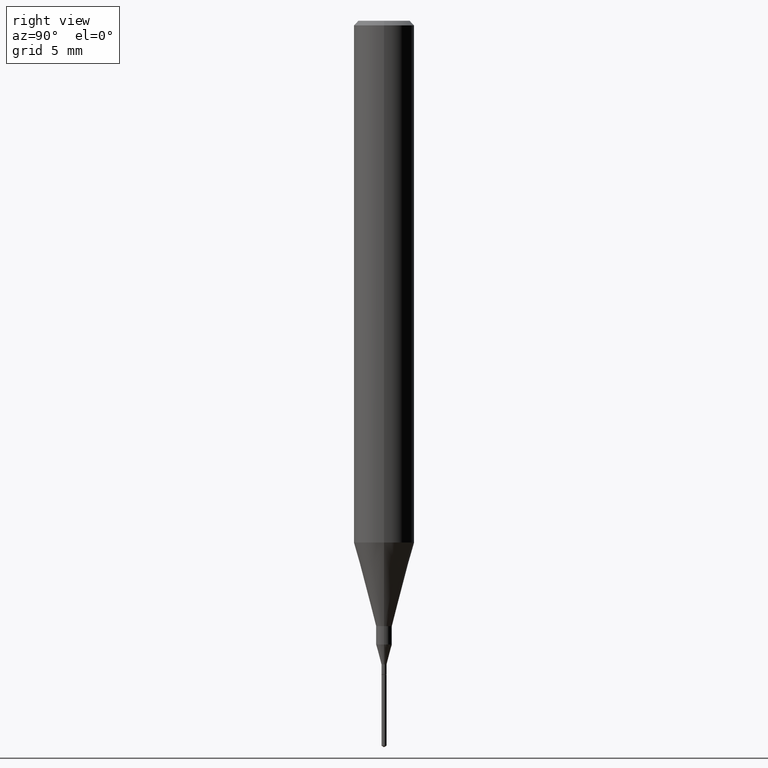
[diagram: clean part render]
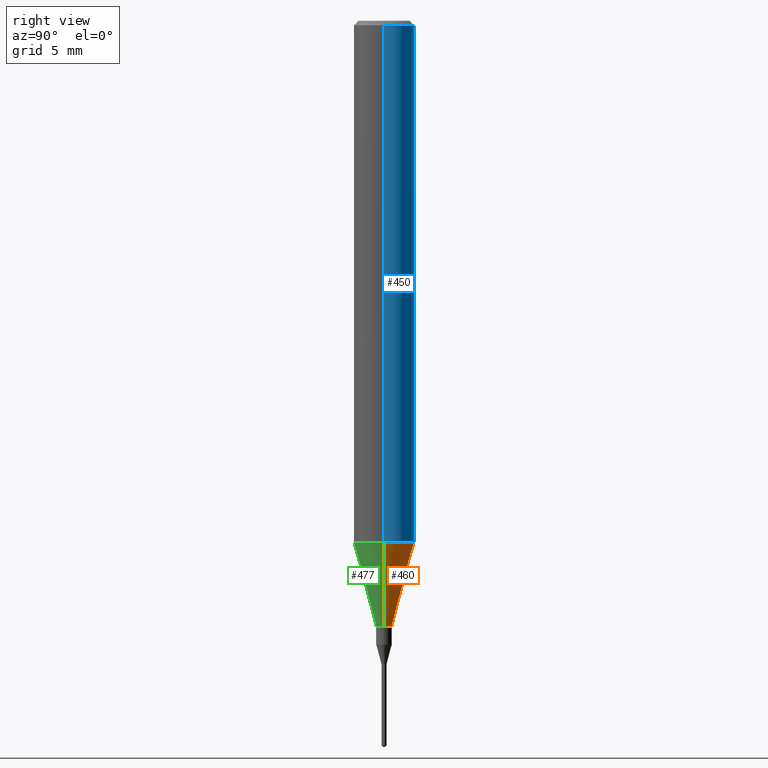
[diagram: same view with three faces highlighted in distinct colors, each labeled with its STEP entity id]
A machine part, right view with three faces highlighted in distinct colors.
Their STEP definitions:

[orange] entity #460 — the highlighted conical surface has half-angle 15 deg.
#48 = VERTEX_POINT ( 'NONE', #338 ) ;
#73 = VECTOR ( 'NONE', #232, 39.37007874015747433 ) ;
#84 = EDGE_CURVE ( 'NONE', #323, #48, #434, .T. ) ;
#88 = DIRECTION ( 'NONE',  ( -2.445468806185136597E-29, 3.491481338843145583E-15, 1.000000000000000000 ) ) ;
#105 = ORIENTED_EDGE ( 'NONE', *, *, #84, .F. ) ;
#121 = CARTESIAN_POINT ( 'NONE',  ( 2.634730117954813298E-29, -3.761696332605275695E-15, -1.077392650149939346 ) ) ;
#122 = CARTESIAN_POINT ( 'NONE',  ( 2.634730117954813298E-29, -3.761696332605275695E-15, -1.077392650149939346 ) ) ;
#124 = LINE ( 'NONE', #439, #518 ) ;
#158 = DIRECTION ( 'NONE',  ( -2.445468806185136597E-29, 3.491481338843145583E-15, 1.000000000000000000 ) ) ;
#164 = CIRCLE ( 'NONE', #372, 0.01624999999999999709 ) ;
#187 = DIRECTION ( 'NONE',  ( -2.445468806185136597E-29, 3.491481338843145583E-15, 1.000000000000000000 ) ) ;
#188 = EDGE_CURVE ( 'NONE', #419, #323, #124, .T. ) ;
#203 = ORIENTED_EDGE ( 'NONE', *, *, #188, .F. ) ;
#232 = DIRECTION ( 'NONE',  ( -0.2588190451025214611, 5.211531920934551042E-15, 0.9659258262890682012 ) ) ;
#236 = EDGE_LOOP ( 'NONE', ( #503, #341, #105, #203 ) ) ;
#263 = AXIS2_PLACEMENT_3D ( 'NONE', #121, #158, #481 ) ;
#264 = DIRECTION ( 'NONE',  ( 1.000000000000000000, -6.982962677686264344E-15, 0.000000000000000000 ) ) ;
#276 = CARTESIAN_POINT ( 'NONE',  ( 0.06250000000000012490, -4.198131499960668153E-15, -1.077392650149939346 ) ) ;
#279 = CARTESIAN_POINT ( 'NONE',  ( -0.06250000000000012490, -3.317607122755211895E-15, -1.077392650149939346 ) ) ;
#290 = EDGE_CURVE ( 'NONE', #419, #547, #164, .T. ) ;
#322 = DIRECTION ( 'NONE',  ( 1.000000000000000000, -6.982962677686288799E-15, 0.000000000000000000 ) ) ;
#323 = VERTEX_POINT ( 'NONE', #276 ) ;
#338 = CARTESIAN_POINT ( 'NONE',  ( -0.06250000000000012490, -3.317607122755211895E-15, -1.077392650149939346 ) ) ;
#341 = ORIENTED_EDGE ( 'NONE', *, *, #398, .T. ) ;
#372 = AXIS2_PLACEMENT_3D ( 'NONE', #550, #187, #322 ) ;
#398 = EDGE_CURVE ( 'NONE', #547, #48, #412, .T. ) ;
#412 = LINE ( 'NONE', #279, #73 ) ;
#419 = VERTEX_POINT ( 'NONE', #505 ) ;
#434 = CIRCLE ( 'NONE', #461, 0.06250000000000012490 ) ;
#439 = CARTESIAN_POINT ( 'NONE',  ( 0.06250000000000012490, -4.198131499960668153E-15, -1.077392650149939346 ) ) ;
#460 = ADVANCED_FACE ( 'NONE', ( #526 ), #510, .T. ) ;
#461 = AXIS2_PLACEMENT_3D ( 'NONE', #122, #88, #264 ) ;
#481 = DIRECTION ( 'NONE',  ( 1.000000000000000000, -6.982962677686264344E-15, 0.000000000000000000 ) ) ;
#491 = DIRECTION ( 'NONE',  ( 0.2588190451025214611, 1.565188264969621573E-15, 0.9659258262890682012 ) ) ;
#503 = ORIENTED_EDGE ( 'NONE', *, *, #290, .T. ) ;
#505 = CARTESIAN_POINT ( 'NONE',  ( 0.01624999999999999709, -4.477824817066334148E-15, -1.250000000000000000 ) ) ;
#510 = CONICAL_SURFACE ( 'NONE', #263, 0.06250000000000012490, 0.2617993877991501295 ) ;
#518 = VECTOR ( 'NONE', #491, 39.37007874015747433 ) ;
#526 = FACE_OUTER_BOUND ( 'NONE', #236, .T. ) ;
#547 = VERTEX_POINT ( 'NONE', #569 ) ;
#550 = CARTESIAN_POINT ( 'NONE',  ( 3.056836007731421306E-29, -4.364351673553932471E-15, -1.250000000000000000 ) ) ;
#569 = CARTESIAN_POINT ( 'NONE',  ( -0.01624999999999999709, -4.315134870250894333E-15, -1.250000000000000000 ) ) ;

[blue] entity #450 — the highlighted cylindrical surface (edge-blend (fillet) strip) has radius 1.5875 mm, axis along (-0, 0, 1).
#35 = DIRECTION ( 'NONE',  ( -2.445468806185136877E-29, 3.491481338843145188E-15, 1.000000000000000000 ) ) ;
#48 = VERTEX_POINT ( 'NONE', #338 ) ;
#78 = LINE ( 'NONE', #260, #295 ) ;
#84 = EDGE_CURVE ( 'NONE', #323, #48, #434, .T. ) ;
#88 = DIRECTION ( 'NONE',  ( -2.445468806185136597E-29, 3.491481338843145583E-15, 1.000000000000000000 ) ) ;
#93 = CARTESIAN_POINT ( 'NONE',  ( -0.06250000000000006939, 4.440892098500631092E-16, -3.074334431409319267E-30 ) ) ;
#96 = CARTESIAN_POINT ( 'NONE',  ( 2.292627005798580623E-31, -3.273263755165470184E-17, -0.009375000000000060368 ) ) ;
#113 = CYLINDRICAL_SURFACE ( 'NONE', #344, 0.06250000000000006939 ) ;
#122 = CARTESIAN_POINT ( 'NONE',  ( 2.634730117954813298E-29, -3.761696332605275695E-15, -1.077392650149939346 ) ) ;
#128 = ORIENTED_EDGE ( 'NONE', *, *, #84, .T. ) ;
#137 = ORIENTED_EDGE ( 'NONE', *, *, #268, .F. ) ;
#143 = CARTESIAN_POINT ( 'NONE',  ( 0.06250000000000000000, -4.691678049070463404E-16, -0.009375000000000060368 ) ) ;
#146 = ORIENTED_EDGE ( 'NONE', *, *, #223, .F. ) ;
#147 = VECTOR ( 'NONE', #364, 39.37007874015748143 ) ;
#192 = CIRCLE ( 'NONE', #528, 0.06250000000000000000 ) ;
#214 = CARTESIAN_POINT ( 'NONE',  ( -0.06250000000000000000, -1.453125275228401137E-15, -0.009375000000000060368 ) ) ;
#223 = EDGE_CURVE ( 'NONE', #323, #282, #78, .T. ) ;
#230 = VERTEX_POINT ( 'NONE', #214 ) ;
#260 = CARTESIAN_POINT ( 'NONE',  ( 0.06250000000000006939, -4.364351673553921624E-16, 3.047610484872463374E-30 ) ) ;
#264 = DIRECTION ( 'NONE',  ( 1.000000000000000000, -6.982962677686264344E-15, 0.000000000000000000 ) ) ;
#268 = EDGE_CURVE ( 'NONE', #282, #230, #192, .T. ) ;
#276 = CARTESIAN_POINT ( 'NONE',  ( 0.06250000000000012490, -4.198131499960668153E-15, -1.077392650149939346 ) ) ;
#282 = VERTEX_POINT ( 'NONE', #143 ) ;
#291 = DIRECTION ( 'NONE',  ( -2.445468806185136597E-29, 3.491481338843145583E-15, 1.000000000000000000 ) ) ;
#295 = VECTOR ( 'NONE', #35, 39.37007874015748143 ) ;
#312 = DIRECTION ( 'NONE',  ( 1.000000000000000000, -6.982962677686266711E-15, 0.000000000000000000 ) ) ;
#316 = LINE ( 'NONE', #93, #147 ) ;
#323 = VERTEX_POINT ( 'NONE', #276 ) ;
#338 = CARTESIAN_POINT ( 'NONE',  ( -0.06250000000000012490, -3.317607122755211895E-15, -1.077392650149939346 ) ) ;
#340 = EDGE_CURVE ( 'NONE', #48, #230, #316, .T. ) ;
#344 = AXIS2_PLACEMENT_3D ( 'NONE', #572, #291, #436 ) ;
#364 = DIRECTION ( 'NONE',  ( -2.445468806185136877E-29, 3.491481338843145188E-15, 1.000000000000000000 ) ) ;
#434 = CIRCLE ( 'NONE', #461, 0.06250000000000012490 ) ;
#436 = DIRECTION ( 'NONE',  ( 1.000000000000000000, -6.982962677686266711E-15, 4.876176775795935793E-29 ) ) ;
#450 = ADVANCED_FACE ( 'NONE', ( #521 ), #113, .T. ) ;
#461 = AXIS2_PLACEMENT_3D ( 'NONE', #122, #88, #264 ) ;
#502 = DIRECTION ( 'NONE',  ( -2.445468806185136597E-29, 3.491481338843145583E-15, 1.000000000000000000 ) ) ;
#521 = FACE_OUTER_BOUND ( 'NONE', #556, .T. ) ;
#528 = AXIS2_PLACEMENT_3D ( 'NONE', #96, #502, #312 ) ;
#556 = EDGE_LOOP ( 'NONE', ( #128, #570, #137, #146 ) ) ;
#570 = ORIENTED_EDGE ( 'NONE', *, *, #340, .T. ) ;
#572 = CARTESIAN_POINT ( 'NONE',  ( 0.000000000000000000, 0.000000000000000000, 0.000000000000000000 ) ) ;

[green] entity #477 — the highlighted conical surface has half-angle 15 deg.
#28 = DIRECTION ( 'NONE',  ( -2.445468806185136597E-29, 3.491481338843145583E-15, 1.000000000000000000 ) ) ;
#48 = VERTEX_POINT ( 'NONE', #338 ) ;
#57 = EDGE_LOOP ( 'NONE', ( #246, #382, #370, #61 ) ) ;
#61 = ORIENTED_EDGE ( 'NONE', *, *, #514, .F. ) ;
#73 = VECTOR ( 'NONE', #232, 39.37007874015747433 ) ;
#77 = CARTESIAN_POINT ( 'NONE',  ( 2.634730117954813298E-29, -3.761696332605275695E-15, -1.077392650149939346 ) ) ;
#124 = LINE ( 'NONE', #439, #518 ) ;
#140 = CARTESIAN_POINT ( 'NONE',  ( 3.056836007731421306E-29, -4.364351673553932471E-15, -1.250000000000000000 ) ) ;
#167 = CARTESIAN_POINT ( 'NONE',  ( 2.634730117954813298E-29, -3.761696332605275695E-15, -1.077392650149939346 ) ) ;
#188 = EDGE_CURVE ( 'NONE', #419, #323, #124, .T. ) ;
#210 = DIRECTION ( 'NONE',  ( 1.000000000000000000, -6.982962677686264344E-15, 0.000000000000000000 ) ) ;
#232 = DIRECTION ( 'NONE',  ( -0.2588190451025214611, 5.211531920934551042E-15, 0.9659258262890682012 ) ) ;
#243 = AXIS2_PLACEMENT_3D ( 'NONE', #140, #430, #455 ) ;
#246 = ORIENTED_EDGE ( 'NONE', *, *, #398, .F. ) ;
#276 = CARTESIAN_POINT ( 'NONE',  ( 0.06250000000000012490, -4.198131499960668153E-15, -1.077392650149939346 ) ) ;
#279 = CARTESIAN_POINT ( 'NONE',  ( -0.06250000000000012490, -3.317607122755211895E-15, -1.077392650149939346 ) ) ;
#323 = VERTEX_POINT ( 'NONE', #276 ) ;
#338 = CARTESIAN_POINT ( 'NONE',  ( -0.06250000000000012490, -3.317607122755211895E-15, -1.077392650149939346 ) ) ;
#363 = CONICAL_SURFACE ( 'NONE', #384, 0.06250000000000012490, 0.2617993877991501295 ) ;
#370 = ORIENTED_EDGE ( 'NONE', *, *, #188, .T. ) ;
#381 = EDGE_CURVE ( 'NONE', #547, #419, #435, .T. ) ;
#382 = ORIENTED_EDGE ( 'NONE', *, *, #381, .T. ) ;
#384 = AXIS2_PLACEMENT_3D ( 'NONE', #77, #523, #476 ) ;
#398 = EDGE_CURVE ( 'NONE', #547, #48, #412, .T. ) ;
#412 = LINE ( 'NONE', #279, #73 ) ;
#419 = VERTEX_POINT ( 'NONE', #505 ) ;
#430 = DIRECTION ( 'NONE',  ( -2.445468806185136597E-29, 3.491481338843145583E-15, 1.000000000000000000 ) ) ;
#435 = CIRCLE ( 'NONE', #243, 0.01624999999999999709 ) ;
#439 = CARTESIAN_POINT ( 'NONE',  ( 0.06250000000000012490, -4.198131499960668153E-15, -1.077392650149939346 ) ) ;
#455 = DIRECTION ( 'NONE',  ( 1.000000000000000000, -6.982962677686288799E-15, 0.000000000000000000 ) ) ;
#476 = DIRECTION ( 'NONE',  ( 1.000000000000000000, -6.982962677686264344E-15, 0.000000000000000000 ) ) ;
#477 = ADVANCED_FACE ( 'NONE', ( #565 ), #363, .T. ) ;
#491 = DIRECTION ( 'NONE',  ( 0.2588190451025214611, 1.565188264969621573E-15, 0.9659258262890682012 ) ) ;
#505 = CARTESIAN_POINT ( 'NONE',  ( 0.01624999999999999709, -4.477824817066334148E-15, -1.250000000000000000 ) ) ;
#514 = EDGE_CURVE ( 'NONE', #48, #323, #587, .T. ) ;
#518 = VECTOR ( 'NONE', #491, 39.37007874015747433 ) ;
#523 = DIRECTION ( 'NONE',  ( -2.445468806185136597E-29, 3.491481338843145583E-15, 1.000000000000000000 ) ) ;
#529 = AXIS2_PLACEMENT_3D ( 'NONE', #167, #28, #210 ) ;
#547 = VERTEX_POINT ( 'NONE', #569 ) ;
#565 = FACE_OUTER_BOUND ( 'NONE', #57, .T. ) ;
#569 = CARTESIAN_POINT ( 'NONE',  ( -0.01624999999999999709, -4.315134870250894333E-15, -1.250000000000000000 ) ) ;
#587 = CIRCLE ( 'NONE', #529, 0.06250000000000012490 ) ;